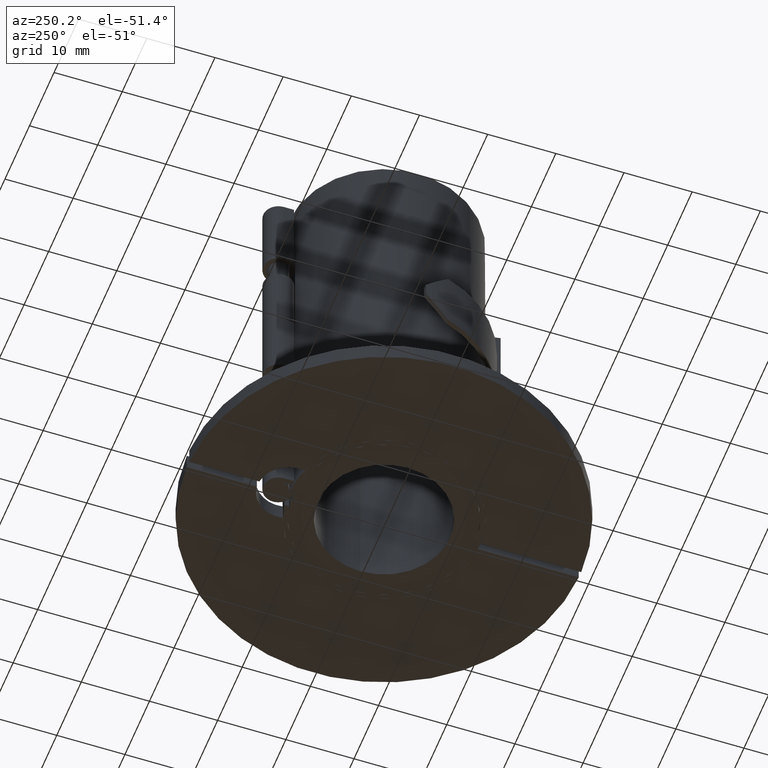
[diagram: clean part render]
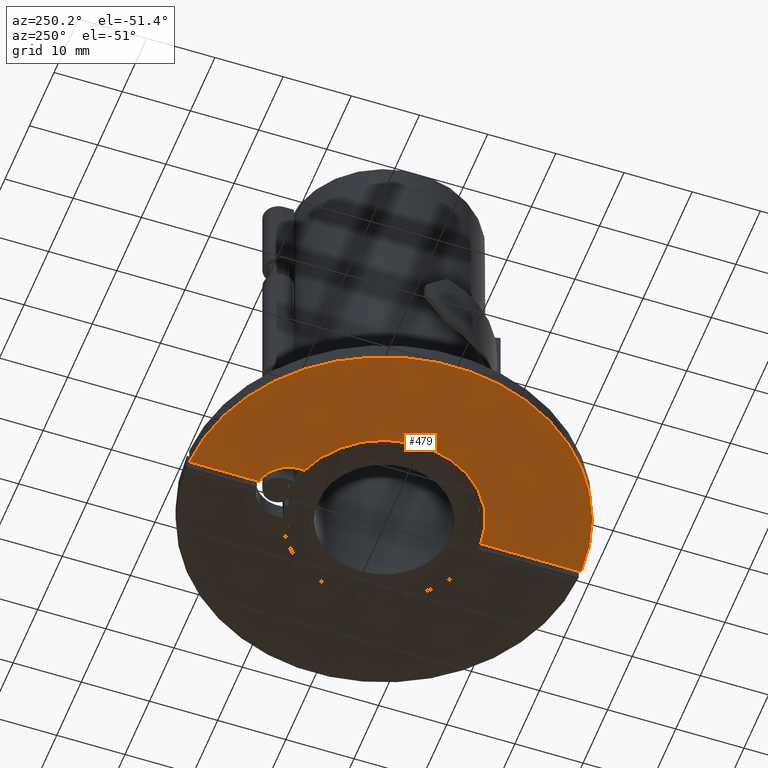
[diagram: same view with one face highlighted and labeled with its STEP entity id]
A machine part, auxiliary view. The second image highlights one B-rep face of the part: STEP entity #479.
In plain terms, the highlighted planar face has unit normal (0, 0, -1).
Its self-contained STEP definition (entity closure, byte-faithful):
#311=CARTESIAN_POINT('',(-0.500000000000002,-13.991068579633223,0.0));
#312=VERTEX_POINT('',#311);
#313=CARTESIAN_POINT('',(-4.441504373175687,13.276785714285715,0.0));
#314=VERTEX_POINT('',#313);
#315=CARTESIAN_POINT('',(1.848893E-031,1.232595E-031,0.0));
#316=DIRECTION('',(1.854058E-033,5.188051E-032,-1.0));
#317=DIRECTION('',(-0.035714285714286,-0.999362041402373,-5.191363E-032));
#318=AXIS2_PLACEMENT_3D('',#315,#316,#317);
#319=CIRCLE('',#318,13.999999999999998);
#320=EDGE_CURVE('',#312,#314,#319,.T.);
#353=CARTESIAN_POINT('',(-0.499999999999998,18.47213595499958,0.0));
#354=VERTEX_POINT('',#353);
#355=CARTESIAN_POINT('',(1.714506E-015,14.000000000000002,0.0));
#356=DIRECTION('',(7.986633E-032,1.300471E-032,-1.0));
#357=DIRECTION('',(-0.98700097181682,-0.160714285714286,-8.091818E-032));
#358=AXIS2_PLACEMENT_3D('',#355,#356,#357);
#359=CIRCLE('',#358,4.499999999999999);
#360=EDGE_CURVE('',#314,#354,#359,.T.);
#386=CARTESIAN_POINT('',(-0.499999999999997,28.745651845105201,0.0));
#387=VERTEX_POINT('',#386);
#388=CARTESIAN_POINT('',(-0.499999999999998,18.47213595499958,0.0));
#389=DIRECTION('',(0.0,1.0,0.0));
#390=VECTOR('',#389,10.273515890105621);
#391=LINE('',#388,#390);
#392=EDGE_CURVE('',#354,#387,#391,.T.);
#417=CARTESIAN_POINT('',(-0.500000000000004,-28.745651845105201,0.0));
#418=VERTEX_POINT('',#417);
#419=CARTESIAN_POINT('',(1.848893E-031,1.232595E-031,0.0));
#420=DIRECTION('',(-8.796963E-034,-5.057489E-032,1.0));
#421=DIRECTION('',(0.017391304347826,0.999848759829746,5.058254E-032));
#422=AXIS2_PLACEMENT_3D('',#419,#420,#421);
#423=CIRCLE('',#422,28.75);
#424=EDGE_CURVE('',#387,#418,#423,.T.);
#450=CARTESIAN_POINT('',(-0.500000000000004,-28.745651845105201,0.0));
#451=DIRECTION('',(0.0,1.0,0.0));
#452=VECTOR('',#451,14.754583265471979);
#453=LINE('',#450,#452);
#454=EDGE_CURVE('',#418,#312,#453,.T.);
#467=CARTESIAN_POINT('',(-11.727389631247757,-0.027356424344547,0.0));
#468=DIRECTION('',(0.0,0.0,-1.0));
#469=DIRECTION('',(-1.0,0.0,0.0));
#470=AXIS2_PLACEMENT_3D('',#467,#468,#469);
#471=PLANE('',#470);
#472=ORIENTED_EDGE('',*,*,#320,.F.);
#473=ORIENTED_EDGE('',*,*,#454,.F.);
#474=ORIENTED_EDGE('',*,*,#424,.F.);
#475=ORIENTED_EDGE('',*,*,#392,.F.);
#476=ORIENTED_EDGE('',*,*,#360,.F.);
#477=EDGE_LOOP('',(#472,#473,#474,#475,#476));
#478=FACE_OUTER_BOUND('',#477,.T.);
#479=ADVANCED_FACE('',(#478),#471,.T.);